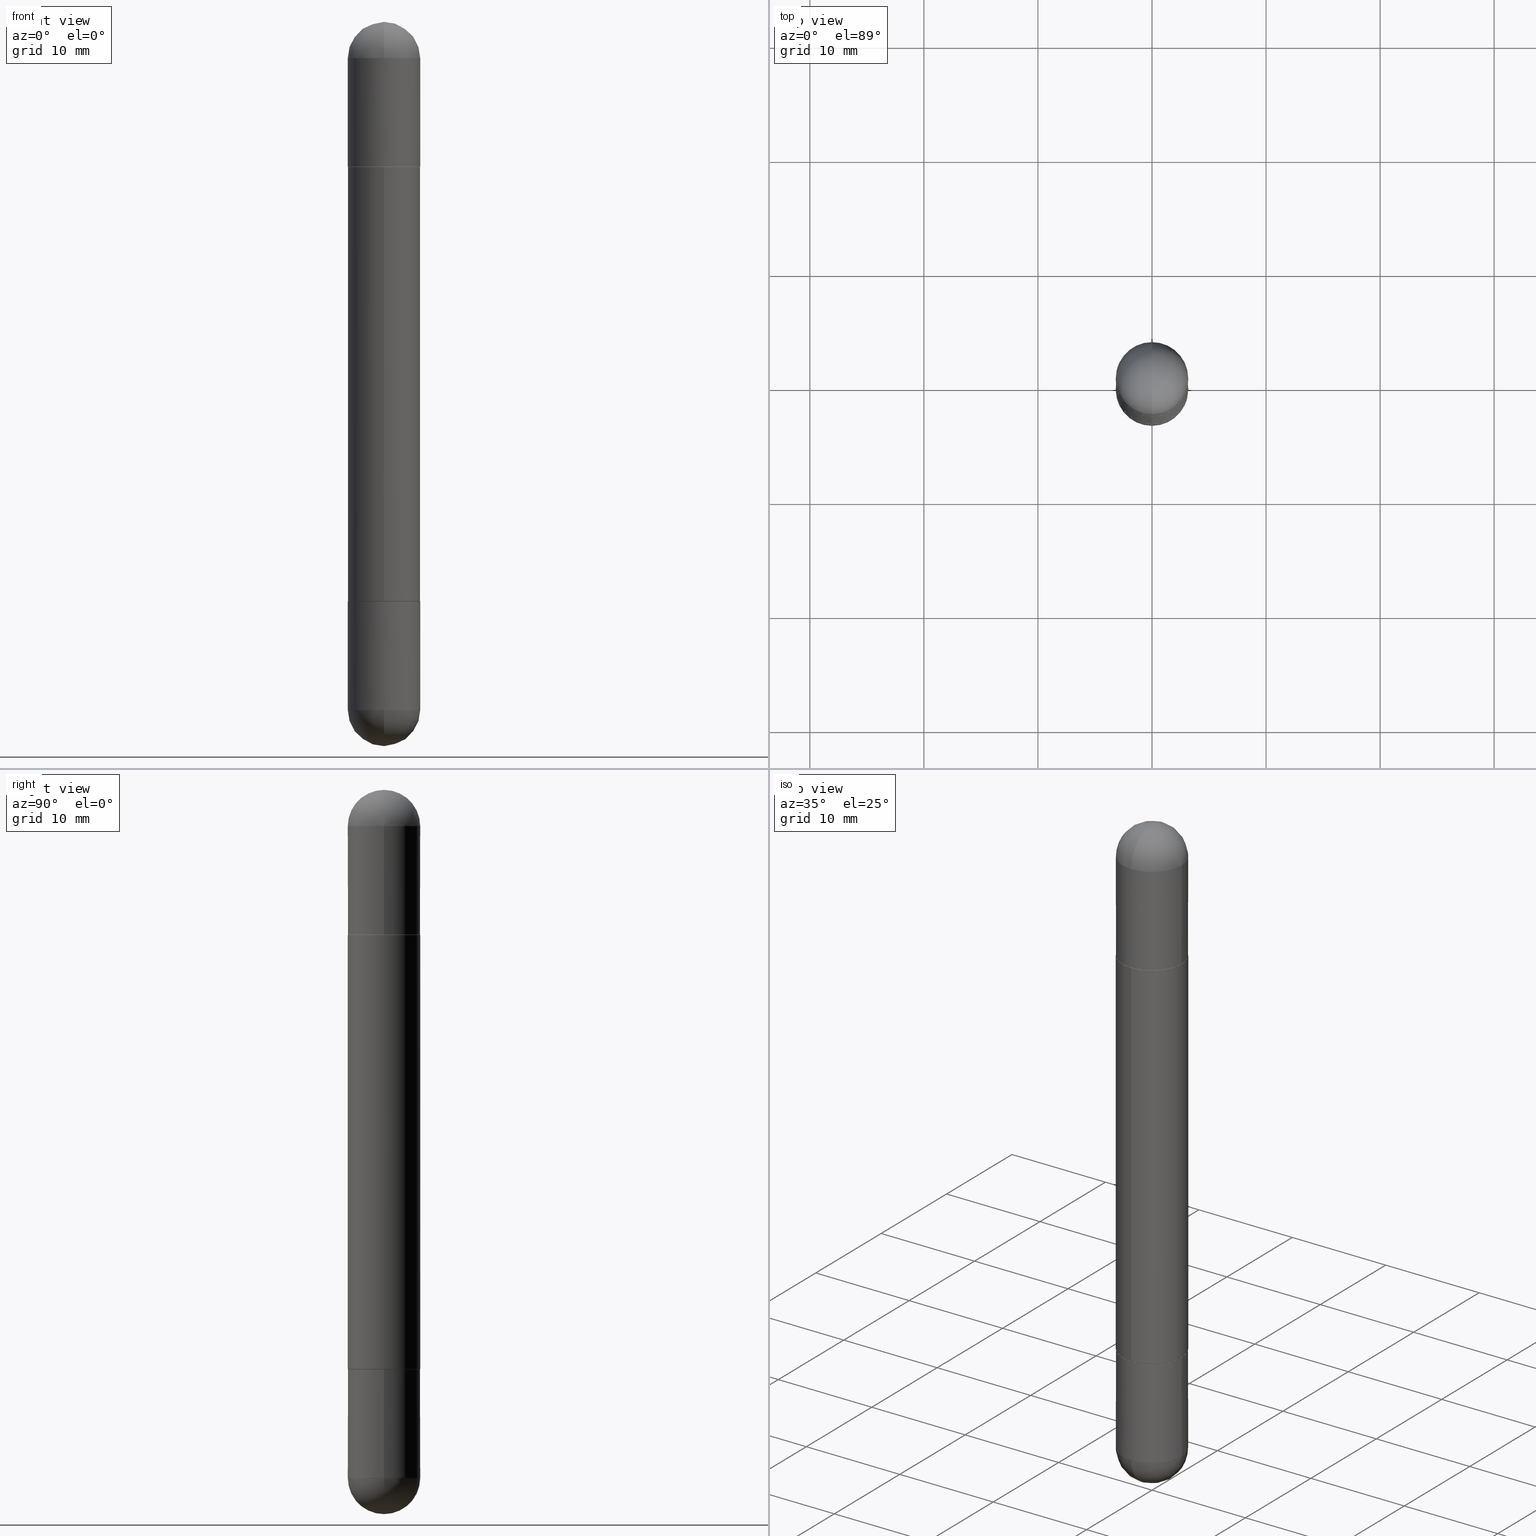
[diagram: canonical four-view strip — front | top / right | iso, engineering-drawing reading convention]
A machine part, canonical four-view strip (front | top / right | iso — engineering-drawing reading convention). The complete STEP part file that produces these views, byte-faithful:
ISO-10303-21;
HEADER;
FILE_DESCRIPTION (( 'STEP AP203' ),
    '1' );
FILE_NAME ('31570.STEP',
    '2024-03-01T12:42:56',
    ( '' ),
    ( '' ),
    'SwSTEP 2.0',
    'SolidWorks 2023',
    '' );
FILE_SCHEMA (( 'CONFIG_CONTROL_DESIGN' ));
ENDSEC;

DATA;
#1 = CARTESIAN_POINT ( 'NONE',  ( -8.881784197000694204E-16, -0.1250000000000086320, -2.374999999999999556 ) ) ;
#2 = CARTESIAN_POINT ( 'NONE',  ( 4.892228969796877709E-29, -6.981113380351891658E-15, -0.5000000000000009992 ) ) ;
#3 = LINE ( 'NONE', #263, #209 ) ;
#4 = DIRECTION ( 'NONE',  ( 2.445468806185136597E-29, -3.491481338843145583E-15, 1.000000000000000000 ) ) ;
#5 = DIRECTION ( 'NONE',  ( 2.445468806185136597E-29, -3.491481338843145583E-15, 1.000000000000000000 ) ) ;
#6 = EDGE_CURVE ( 'NONE', #235, #281, #620, .T. ) ;
#7 = AXIS2_PLACEMENT_3D ( 'NONE', #644, #702, #696 ) ;
#8 = PLANE ( 'NONE',  #88 ) ;
#9 = VERTEX_POINT ( 'NONE', #781 ) ;
#10 = CIRCLE ( 'NONE', #431, 0.1250000000000000000 ) ;
#11 = CIRCLE ( 'NONE', #722, 0.1250000000000002776 ) ;
#12 = CARTESIAN_POINT ( 'NONE',  ( 5.476868636775814291E-29, -8.766450547892521992E-15, -0.1250000000000004441 ) ) ;
#13 = DIRECTION ( 'NONE',  ( 2.446114484898439135E-29, -3.490556690175946223E-15, 1.000000000000000000 ) ) ;
#14 = PLANE ( 'NONE',  #383 ) ;
#15 = DIRECTION ( 'NONE',  ( -0.000000000000000000, -0.000000000000000000, -1.000000000000000000 ) ) ;
#16 = CARTESIAN_POINT ( 'NONE',  ( 0.000000000000000000, 0.000000000000000000, -2.500000000000000444 ) ) ;
#17 = DIRECTION ( 'NONE',  ( -2.446114484898439135E-29, 3.490556690175946618E-15, -1.000000000000000000 ) ) ;
#18 = ADVANCED_FACE ( 'NONE', ( #164 ), #784, .F. ) ;
#19 = CARTESIAN_POINT ( 'NONE',  ( -0.1250000000000000000, 8.575622497214414453E-16, -2.500000000000000444 ) ) ;
#20 = CIRCLE ( 'NONE', #446, 0.1239999999999999991 ) ;
#21 = CC_DESIGN_PERSON_AND_ORGANIZATION_ASSIGNMENT ( #735, #184, ( #697 ) ) ;
#22 = CIRCLE ( 'NONE', #584, 0.1250000000000000000 ) ;
#23 = LENGTH_MEASURE_WITH_UNIT ( LENGTH_MEASURE( 0.02539999999999999897 ), #276 );
#24 = CIRCLE ( 'NONE', #36, 0.1250000000000002776 ) ;
#25 = ORIENTED_EDGE ( 'NONE', *, *, #318, .F. ) ;
#26 = LINE ( 'NONE', #336, #814 ) ;
#27 = ORIENTED_EDGE ( 'NONE', *, *, #127, .F. ) ;
#28 = ORIENTED_EDGE ( 'NONE', *, *, #450, .F. ) ;
#29 = CALENDAR_DATE ( 2024, 1, 3 ) ;
#30 = ADVANCED_FACE ( 'NONE', ( #419 ), #726, .T. ) ;
#31 = VERTEX_POINT ( 'NONE', #503 ) ;
#32 = ADVANCED_FACE ( 'NONE', ( #260 ), #313, .T. ) ;
#33 = AXIS2_PLACEMENT_3D ( 'NONE', #62, #442, #691 ) ;
#34 = COORDINATED_UNIVERSAL_TIME_OFFSET ( 5, 0, .BEHIND. ) ;
#35 = AXIS2_PLACEMENT_3D ( 'NONE', #765, #578, #457 ) ;
#36 = AXIS2_PLACEMENT_3D ( 'NONE', #463, #579, #158 ) ;
#37 = VERTEX_POINT ( 'NONE', #1 ) ;
#38 = ORIENTED_EDGE ( 'NONE', *, *, #60, .F. ) ;
#39 = PERSON_AND_ORGANIZATION_ROLE ( 'creator' ) ;
#40 = ORIENTED_EDGE ( 'NONE', *, *, #655, .T. ) ;
#41 = ORIENTED_EDGE ( 'NONE', *, *, #239, .F. ) ;
#42 = COORDINATED_UNIVERSAL_TIME_OFFSET ( 5, 0, .BEHIND. ) ;
#43 = ORIENTED_EDGE ( 'NONE', *, *, #677, .T. ) ;
#44 = ORIENTED_EDGE ( 'NONE', *, *, #586, .T. ) ;
#45 = DIRECTION ( 'NONE',  ( -2.446114484898438574E-29, 3.490556690175946618E-15, -1.000000000000000000 ) ) ;
#46 = DIRECTION ( 'NONE',  ( 2.445468806185136597E-29, -3.491481338843145583E-15, 1.000000000000000000 ) ) ;
#47 = EDGE_CURVE ( 'NONE', #468, #783, #297, .T. ) ;
#48 = DIRECTION ( 'NONE',  ( 0.000000000000000000, 0.000000000000000000, 1.000000000000000000 ) ) ;
#49 = AXIS2_PLACEMENT_3D ( 'NONE', #207, #447, #685 ) ;
#50 = AXIS2_PLACEMENT_3D ( 'NONE', #82, #648, #705 ) ;
#51 = VERTEX_POINT ( 'NONE', #817 ) ;
#52 = ORIENTED_EDGE ( 'NONE', *, *, #450, .T. ) ;
#53 = LINE ( 'NONE', #307, #649 ) ;
#54 = DIRECTION ( 'NONE',  ( 1.000000000000000000, -6.982962677686265922E-15, -4.883557194083112901E-29 ) ) ;
#55 = EDGE_LOOP ( 'NONE', ( #289, #680, #759, #589, #596 ) ) ;
#56 = ORIENTED_EDGE ( 'NONE', *, *, #6, .F. ) ;
#57 = CARTESIAN_POINT ( 'NONE',  ( 5.807988414689700538E-29, -8.292268179752471696E-15, -0.1250000000000004441 ) ) ;
#58 = CARTESIAN_POINT ( 'NONE',  ( 0.1250000000000000000, -8.728703347107833388E-16, -2.500000000000000444 ) ) ;
#59 = CARTESIAN_POINT ( 'NONE',  ( 4.889782855311978936E-29, -6.977622823661715081E-15, -0.5010000000000010001 ) ) ;
#60 = EDGE_CURVE ( 'NONE', #539, #232, #478, .T. ) ;
#61 = CARTESIAN_POINT ( 'NONE',  ( -8.728703347107364016E-16, -0.1250000000000072720, -0.5010000000000014442 ) ) ;
#62 = CARTESIAN_POINT ( 'NONE',  ( 5.807988414689700538E-29, -8.292268179752471696E-15, -0.1250000000000004441 ) ) ;
#63 = DIRECTION ( 'NONE',  ( -2.446114484898438574E-29, 3.490556690175946618E-15, 1.000000000000000000 ) ) ;
#64 = AXIS2_PLACEMENT_3D ( 'NONE', #216, #4, #392 ) ;
#65 = CIRCLE ( 'NONE', #695, 0.1250000000000001388 ) ;
#66 = CARTESIAN_POINT ( 'NONE',  ( 5.807988414689700538E-29, -8.292268179752471696E-15, -0.1250000000000004441 ) ) ;
#67 = FACE_OUTER_BOUND ( 'NONE', #317, .T. ) ;
#68 = CARTESIAN_POINT ( 'NONE',  ( -8.575622497213856334E-16, -0.1250000000000086320, -0.1250000000000008882 ) ) ;
#69 = DIRECTION ( 'NONE',  ( 1.000000000000000000, -6.982962677686266711E-15, 0.000000000000000000 ) ) ;
#70 = CARTESIAN_POINT ( 'NONE',  ( 8.728703347108403340E-16, 0.1249999999999915623, -0.1250000000000000000 ) ) ;
#71 = CARTESIAN_POINT ( 'NONE',  ( 5.476868636775814291E-29, -8.766450547892521992E-15, -2.375000000000000000 ) ) ;
#72 = DIRECTION ( 'NONE',  ( -2.445468806185136877E-29, 3.491481338843145188E-15, 1.000000000000000000 ) ) ;
#73 = CARTESIAN_POINT ( 'NONE',  ( 5.476868636775814291E-29, -8.766450547892521992E-15, -0.1250000000000004441 ) ) ;
#74 = AXIS2_PLACEMENT_3D ( 'NONE', #256, #750, #698 ) ;
#75 = AXIS2_PLACEMENT_3D ( 'NONE', #214, #454, #811 ) ;
#76 = CARTESIAN_POINT ( 'NONE',  ( 5.476868636775814291E-29, -8.766450547892521992E-15, -2.375000000000000000 ) ) ;
#77 = DIRECTION ( 'NONE',  ( 1.000000000000000000, -6.982962677686270655E-15, 0.000000000000000000 ) ) ;
#78 = DIRECTION ( 'NONE',  ( -6.982962677686265922E-15, -1.000000000000000000, -3.304654831045479808E-15 ) ) ;
#79 = ORIENTED_EDGE ( 'NONE', *, *, #693, .T. ) ;
#80 = DIRECTION ( 'NONE',  ( -2.445468806185136877E-29, 3.491481338843145188E-15, -1.000000000000000000 ) ) ;
#81 = ADVANCED_FACE ( 'NONE', ( #555 ), #810, .T. ) ;
#82 = CARTESIAN_POINT ( 'NONE',  ( 0.000000000000000000, 0.000000000000000000, -2.500000000000000444 ) ) ;
#83 = DIRECTION ( 'NONE',  ( 2.438088387897960049E-29, -3.491481338843145188E-15, 1.000000000000000000 ) ) ;
#84 = EDGE_CURVE ( 'NONE', #413, #740, #797, .T. ) ;
#85 = ORIENTED_EDGE ( 'NONE', *, *, #84, .T. ) ;
#86 = FACE_OUTER_BOUND ( 'NONE', #792, .T. ) ;
#87 = DIMENSIONAL_EXPONENTS ( 1.000000000000000000, 0.000000000000000000, 0.000000000000000000, 0.000000000000000000, 0.000000000000000000, 0.000000000000000000, 0.000000000000000000 ) ;
#88 = AXIS2_PLACEMENT_3D ( 'NONE', #625, #83, #334 ) ;
#89 = CONICAL_SURFACE ( 'NONE', #760, 0.1239999999999999991, 0.7853981633975507526 ) ;
#90 = CYLINDRICAL_SURFACE ( 'NONE', #50, 0.1250000000000001388 ) ;
#91 = APPROVAL_PERSON_ORGANIZATION ( #532, #403, #785 ) ;
#92 = ORIENTED_EDGE ( 'NONE', *, *, #273, .T. ) ;
#93 = CC_DESIGN_DATE_AND_TIME_ASSIGNMENT ( #538, #346, ( #531 ) ) ;
#94 = FACE_OUTER_BOUND ( 'NONE', #429, .T. ) ;
#95 = ORIENTED_EDGE ( 'NONE', *, *, #6, .T. ) ;
#96 = EDGE_CURVE ( 'NONE', #615, #413, #254, .T. ) ;
#97 = EDGE_LOOP ( 'NONE', ( #98, #398, #250, #226 ) ) ;
#98 = ORIENTED_EDGE ( 'NONE', *, *, #677, .F. ) ;
#99 = PERSON_AND_ORGANIZATION_ROLE ( 'design_supplier' ) ;
#100 = ORIENTED_EDGE ( 'NONE', *, *, #474, .T. ) ;
#101 = ORIENTED_EDGE ( 'NONE', *, *, #337, .T. ) ;
#102 = PERSON_AND_ORGANIZATION ( #421, #460 ) ;
#103 = CIRCLE ( 'NONE', #136, 0.1250000000000001388 ) ;
#104 = LOCAL_TIME ( 7, 42, 56.00000000000000000, #666 ) ;
#105 = EDGE_LOOP ( 'NONE', ( #175, #188, #462, #373 ) ) ;
#106 = ORIENTED_EDGE ( 'NONE', *, *, #815, .F. ) ;
#107 = DATE_AND_TIME ( #588, #151 ) ;
#108 = CARTESIAN_POINT ( 'NONE',  ( -8.728703347107363030E-16, -0.1250000000000072442, -1.998999999999999000 ) ) ;
#109 = ADVANCED_FACE ( 'NONE', ( #497 ), #246, .T. ) ;
#110 = ORIENTED_EDGE ( 'NONE', *, *, #293, .F. ) ;
#111 = ORIENTED_EDGE ( 'NONE', *, *, #703, .F. ) ;
#112 = DIRECTION ( 'NONE',  ( -2.446114484898439135E-29, 3.490556690175946618E-15, -1.000000000000000000 ) ) ;
#113 = CARTESIAN_POINT ( 'NONE',  ( 4.889782855311978936E-29, -6.977622823661715081E-15, -0.5010000000000010001 ) ) ;
#114 = ORIENTED_EDGE ( 'NONE', *, *, #127, .T. ) ;
#115 = DIRECTION ( 'NONE',  ( 4.851104656541460468E-15, 0.7071067811866224018, -0.7071067811864726327 ) ) ;
#116 = DIRECTION ( 'NONE',  ( 1.000000000000000000, -6.982962677686270655E-15, 0.000000000000000000 ) ) ;
#117 = CALENDAR_DATE ( 2024, 1, 3 ) ;
#118 = CLOSED_SHELL ( 'NONE', ( #30, #161, #388, #341, #378 ) ) ;
#119 = CIRCLE ( 'NONE', #290, 0.1239999999999999991 ) ;
#120 = APPROVAL_PERSON_ORGANIZATION ( #420, #179, #671 ) ;
#121 = EDGE_LOOP ( 'NONE', ( #681, #476, #610, #535, #778 ) ) ;
#122 = CARTESIAN_POINT ( 'NONE',  ( 5.476868636775814291E-29, -8.766450547892521992E-15, -0.1250000000000004441 ) ) ;
#123 = DIRECTION ( 'NONE',  ( -2.445468806185136877E-29, 3.491481338843145188E-15, -1.000000000000000000 ) ) ;
#124 = EDGE_CURVE ( 'NONE', #385, #198, #135, .T. ) ;
#125 = SPHERICAL_SURFACE ( 'NONE', #605, 0.1250000000000001943 ) ;
#126 = ORIENTED_EDGE ( 'NONE', *, *, #302, .T. ) ;
#127 = EDGE_CURVE ( 'NONE', #793, #362, #208, .T. ) ;
#128 = PRODUCT_DEFINITION_SHAPE ( 'NONE', 'NONE',  #531 ) ;
#129 = DIRECTION ( 'NONE',  ( 2.445468806185136597E-29, -3.491481338843145583E-15, 1.000000000000000000 ) ) ;
#130 = CARTESIAN_POINT ( 'NONE',  ( 4.892228969796877709E-29, -6.981113380351891658E-15, -0.5000000000000009992 ) ) ;
#131 = DIRECTION ( 'NONE',  ( -2.446114484898439135E-29, 3.490556690175946223E-15, -1.000000000000000000 ) ) ;
#132 = ORIENTED_EDGE ( 'NONE', *, *, #47, .T. ) ;
#133 = CARTESIAN_POINT ( 'NONE',  ( 4.890937612370273194E-29, -6.982962677686291165E-15, -0.5000000000000006661 ) ) ;
#134 = CARTESIAN_POINT ( 'NONE',  ( 0.1250000000000000000, -8.728703347107833388E-16, -2.500000000000000444 ) ) ;
#135 = CIRCLE ( 'NONE', #796, 0.1250000000000000000 ) ;
#136 = AXIS2_PLACEMENT_3D ( 'NONE', #401, #15, #327 ) ;
#137 = CARTESIAN_POINT ( 'NONE',  ( -0.1250000000000000000, 8.881784197001252323E-16, -6.148668862818632227E-30 ) ) ;
#138 = AXIS2_PLACEMENT_3D ( 'NONE', #165, #342, #635 ) ;
#139 = CARTESIAN_POINT ( 'NONE',  ( -8.658873720330480207E-16, -0.1240000000000069796, -0.5000000000000013323 ) ) ;
#140 = CARTESIAN_POINT ( 'NONE',  ( 5.807988414689700538E-29, -8.292268179752471696E-15, -2.375000000000000000 ) ) ;
#141 = CARTESIAN_POINT ( 'NONE',  ( 8.728703347108403340E-16, 0.1249999999999915623, -2.375000000000000888 ) ) ;
#142 = EDGE_CURVE ( 'NONE', #672, #235, #277, .T. ) ;
#143 = DIRECTION ( 'NONE',  ( -6.982962677686265922E-15, -1.000000000000000000, -3.278217592397108762E-15 ) ) ;
#144 = CARTESIAN_POINT ( 'NONE',  ( 0.1250000000000000000, -7.855833012397075293E-15, -0.5000000000000006661 ) ) ;
#145 = DIRECTION ( 'NONE',  ( -1.000000000000000000, 6.982962677686265922E-15, -4.876176775795935793E-29 ) ) ;
#146 = CARTESIAN_POINT ( 'NONE',  ( 4.892228969796878269E-29, -6.981113380351892447E-15, -0.5000000000000006661 ) ) ;
#147 = CIRCLE ( 'NONE', #64, 0.1250000000000000000 ) ;
#148 = CYLINDRICAL_SURFACE ( 'NONE', #395, 0.1250000000000000000 ) ;
#149 = EDGE_LOOP ( 'NONE', ( #790, #585, #79, #598 ) ) ;
#150 = AXIS2_PLACEMENT_3D ( 'NONE', #16, #275, #522 ) ;
#151 = LOCAL_TIME ( 7, 42, 56.00000000000000000, #177 ) ;
#152 = CARTESIAN_POINT ( 'NONE',  ( 0.1250000000000000000, -8.510485763430165164E-15, -0.1250000000000004441 ) ) ;
#153 = FACE_OUTER_BOUND ( 'NONE', #357, .T. ) ;
#154 = EDGE_CURVE ( 'NONE', #51, #281, #647, .T. ) ;
#155 = ORIENTED_EDGE ( 'NONE', *, *, #586, .F. ) ;
#156 = ORIENTED_EDGE ( 'NONE', *, *, #163, .F. ) ;
#157 = CARTESIAN_POINT ( 'NONE',  ( 4.892228969796877709E-29, -6.981113380351891658E-15, -1.999999999999999778 ) ) ;
#158 = DIRECTION ( 'NONE',  ( -6.982962677686265922E-15, -1.000000000000000000, 4.370956789862811683E-15 ) ) ;
#159 = FACE_OUTER_BOUND ( 'NONE', #779, .T. ) ;
#160 = DIRECTION ( 'NONE',  ( -2.446114484898439135E-29, 3.490556690175946223E-15, 1.000000000000000000 ) ) ;
#161 = ADVANCED_FACE ( 'NONE', ( #359 ), #308, .T. ) ;
#162 = CIRCLE ( 'NONE', #326, 0.1250000000000000000 ) ;
#163 = EDGE_CURVE ( 'NONE', #305, #9, #405, .T. ) ;
#164 = FACE_OUTER_BOUND ( 'NONE', #484, .T. ) ;
#165 = CARTESIAN_POINT ( 'NONE',  ( 0.000000000000000000, 0.000000000000000000, -2.500000000000000444 ) ) ;
#166 = MANIFOLD_SOLID_BREP ( 'Mirror4[3]', #242 ) ;
#167 = EDGE_CURVE ( 'NONE', #344, #527, #604, .T. ) ;
#168 = EDGE_LOOP ( 'NONE', ( #27, #52, #714, #741 ) ) ;
#169 = MANIFOLD_SOLID_BREP ( 'Mirror4[1]', #583 ) ;
#170 = CARTESIAN_POINT ( 'NONE',  ( 0.000000000000000000, 0.000000000000000000, -2.500000000000000444 ) ) ;
#171 = MANIFOLD_SOLID_BREP ( 'Combine1', #265 ) ;
#172 = VERTEX_POINT ( 'NONE', #200 ) ;
#173 = APPLICATION_PROTOCOL_DEFINITION ( 'international standard', 'config_control_design', 1994, #713 ) ;
#174 = ORIENTED_EDGE ( 'NONE', *, *, #60, .T. ) ;
#175 = ORIENTED_EDGE ( 'NONE', *, *, #273, .F. ) ;
#176 = CARTESIAN_POINT ( 'NONE',  ( 8.810729923425729363E-16, 0.1239999999999930186, -2.000000000000000444 ) ) ;
#177 = COORDINATED_UNIVERSAL_TIME_OFFSET ( 5, 0, .BEHIND. ) ;
#178 = AXIS2_PLACEMENT_3D ( 'NONE', #558, #572, #262 ) ;
#179 = APPROVAL ( #247, 'UNSPECIFIED' ) ;
#180 = VERTEX_POINT ( 'NONE', #617 ) ;
#181 = VERTEX_POINT ( 'NONE', #501 ) ;
#182 = DIRECTION ( 'NONE',  ( 1.000000000000000000, -6.982962677686270655E-15, 0.000000000000000000 ) ) ;
#183 = DIRECTION ( 'NONE',  ( 1.000000000000000000, -6.982962677686266711E-15, 4.876176775795935793E-29 ) ) ;
#184 = PERSON_AND_ORGANIZATION_ROLE ( 'classification_officer' ) ;
#185 = ORIENTED_EDGE ( 'NONE', *, *, #699, .F. ) ;
#186 = DIRECTION ( 'NONE',  ( 1.000000000000000000, -6.982962677686266711E-15, 0.000000000000000000 ) ) ;
#187 = ORIENTED_EDGE ( 'NONE', *, *, #609, .T. ) ;
#188 = ORIENTED_EDGE ( 'NONE', *, *, #767, .T. ) ;
#189 = EDGE_CURVE ( 'NONE', #600, #615, #416, .T. ) ;
#190 = SPHERICAL_SURFACE ( 'NONE', #534, 0.1250000000000001943 ) ;
#191 = DIRECTION ( 'NONE',  ( 1.000000000000000000, -6.982962677686270655E-15, 0.000000000000000000 ) ) ;
#192 = FACE_OUTER_BOUND ( 'NONE', #215, .T. ) ;
#193 = CIRCLE ( 'NONE', #732, 0.1250000000000001943 ) ;
#194 = DIRECTION ( 'NONE',  ( -6.982962677686265922E-15, -1.000000000000000000, 3.490556690175946618E-15 ) ) ;
#195 = VECTOR ( 'NONE', #115, 39.37007874015748143 ) ;
#196 = AXIS2_PLACEMENT_3D ( 'NONE', #641, #766, #656 ) ;
#197 = ADVANCED_FACE ( 'NONE', ( #67 ), #380, .F. ) ;
#198 = VERTEX_POINT ( 'NONE', #213 ) ;
#199 = CARTESIAN_POINT ( 'NONE',  ( 4.892228969796877709E-29, -6.981113380351891658E-15, -0.5000000000000009992 ) ) ;
#200 = CARTESIAN_POINT ( 'NONE',  ( 5.787897026856327965E-29, -9.195231672753244292E-15, -2.500000000000000444 ) ) ;
#201 = CARTESIAN_POINT ( 'NONE',  ( -0.1250000000000000000, -6.749437009019255804E-15, -2.000000000000000000 ) ) ;
#202 = ORIENTED_EDGE ( 'NONE', *, *, #154, .F. ) ;
#203 = CARTESIAN_POINT ( 'NONE',  ( 0.1250000000000000000, -8.510485763430165164E-15, -2.375000000000000000 ) ) ;
#204 = DIRECTION ( 'NONE',  ( -6.982962677686265922E-15, -1.000000000000000000, -3.278217592397108762E-15 ) ) ;
#205 = LINE ( 'NONE', #134, #507 ) ;
#206 = CARTESIAN_POINT ( 'NONE',  ( 8.728703347108321496E-16, 0.1249999999999930195, -2.000000000000000444 ) ) ;
#207 = CARTESIAN_POINT ( 'NONE',  ( 5.807988414689700538E-29, -8.292268179752471696E-15, -2.375000000000000000 ) ) ;
#208 = CIRCLE ( 'NONE', #394, 0.1239999999999999991 ) ;
#209 = VECTOR ( 'NONE', #505, 39.37007874015748143 ) ;
#210 = EDGE_CURVE ( 'NONE', #422, #181, #147, .T. ) ;
#211 = CARTESIAN_POINT ( 'NONE',  ( 0.000000000000000000, 0.000000000000000000, -2.500000000000000444 ) ) ;
#212 = CIRCLE ( 'NONE', #761, 0.1239999999999999991 ) ;
#213 = CARTESIAN_POINT ( 'NONE',  ( -0.1250000000000000000, -6.749437009019256592E-15, -2.375000000000000000 ) ) ;
#214 = CARTESIAN_POINT ( 'NONE',  ( 5.476868636775814291E-29, -8.766450547892521992E-15, -0.1250000000000004441 ) ) ;
#215 = EDGE_LOOP ( 'NONE', ( #41, #43, #733, #665 ) ) ;
#216 = CARTESIAN_POINT ( 'NONE',  ( 5.807988414689700538E-29, -8.292268179752471696E-15, -0.1250000000000004441 ) ) ;
#217 = DIRECTION ( 'NONE',  ( 1.000000000000000000, -6.982962677686270655E-15, 0.000000000000000000 ) ) ;
#218 = CARTESIAN_POINT ( 'NONE',  ( -0.1250000000000000000, -6.780053178997941168E-15, -0.1250000000000004441 ) ) ;
#219 = ORIENTED_EDGE ( 'NONE', *, *, #271, .F. ) ;
#220 = DIRECTION ( 'NONE',  ( -2.446114484898439135E-29, 3.490556690175946223E-15, -1.000000000000000000 ) ) ;
#221 = ADVANCED_FACE ( 'NONE', ( #444 ), #757, .T. ) ;
#222 = CARTESIAN_POINT ( 'NONE',  ( -0.1250000000000000000, -6.780053178997939591E-15, -0.5000000000000006661 ) ) ;
#223 = VECTOR ( 'NONE', #399, 39.37007874015748143 ) ;
#224 = PRODUCT_DEFINITION_FORMATION_WITH_SPECIFIED_SOURCE ( 'ANY', '', #494, .NOT_KNOWN. ) ;
#225 = CARTESIAN_POINT ( 'NONE',  ( 8.575622497214919324E-16, 0.1249999999999932693, -0.5010000000000006670 ) ) ;
#226 = ORIENTED_EDGE ( 'NONE', *, *, #510, .T. ) ;
#227 = DIRECTION ( 'NONE',  ( -2.446114484898438574E-29, 3.490556690175946618E-15, -1.000000000000000000 ) ) ;
#228 = CIRCLE ( 'NONE', #533, 0.1239999999999999991 ) ;
#229 = ORIENTED_EDGE ( 'NONE', *, *, #678, .F. ) ;
#230 = AXIS2_PLACEMENT_3D ( 'NONE', #562, #631, #564 ) ;
#231 = CONICAL_SURFACE ( 'NONE', #396, 0.1239999999999999991, 0.7853981633975507526 ) ;
#232 = VERTEX_POINT ( 'NONE', #707 ) ;
#233 = DIRECTION ( 'NONE',  ( 0.000000000000000000, 0.000000000000000000, 1.000000000000000000 ) ) ;
#234 = SHAPE_DEFINITION_REPRESENTATION ( #128, #384 ) ;
#235 = VERTEX_POINT ( 'NONE', #152 ) ;
#236 = ORIENTED_EDGE ( 'NONE', *, *, #376, .T. ) ;
#237 = CALENDAR_DATE ( 2024, 1, 3 ) ;
#238 = ORIENTED_EDGE ( 'NONE', *, *, #210, .F. ) ;
#239 = EDGE_CURVE ( 'NONE', #180, #600, #430, .T. ) ;
#240 = APPROVAL_DATE_TIME ( #791, #179 ) ;
#241 = ORIENTED_EDGE ( 'NONE', *, *, #655, .F. ) ;
#242 = CLOSED_SHELL ( 'NONE', ( #81, #472, #544, #390, #352 ) ) ;
#243 = APPROVAL_ROLE ( '' ) ;
#244 = AXIS2_PLACEMENT_3D ( 'NONE', #12, #272, #268 ) ;
#245 = ORIENTED_EDGE ( 'NONE', *, *, #652, .F. ) ;
#246 = CYLINDRICAL_SURFACE ( 'NONE', #545, 0.1250000000000000000 ) ;
#247 = APPROVAL_STATUS ( 'not_yet_approved' ) ;
#248 = LINE ( 'NONE', #423, #195 ) ;
#249 = EDGE_CURVE ( 'NONE', #362, #468, #565, .T. ) ;
#250 = ORIENTED_EDGE ( 'NONE', *, *, #189, .T. ) ;
#251 = DIRECTION ( 'NONE',  ( -1.000000000000000000, 0.000000000000000000, 0.000000000000000000 ) ) ;
#252 = DIRECTION ( 'NONE',  ( -2.445468806185136597E-29, 3.491481338843145583E-15, -1.000000000000000000 ) ) ;
#253 = DIRECTION ( 'NONE',  ( -1.000000000000000000, 6.982962677686265922E-15, 4.883557194083112340E-29 ) ) ;
#254 = LINE ( 'NONE', #58, #338 ) ;
#255 = AXIS2_PLACEMENT_3D ( 'NONE', #594, #233, #473 ) ;
#256 = CARTESIAN_POINT ( 'NONE',  ( 5.476868636775814291E-29, -8.766450547892521992E-15, -0.1250000000000004441 ) ) ;
#257 = CIRCLE ( 'NONE', #679, 0.1250000000000000000 ) ;
#258 = CARTESIAN_POINT ( 'NONE',  ( 0.000000000000000000, 0.000000000000000000, 0.000000000000000000 ) ) ;
#259 = PLANE ( 'NONE',  #773 ) ;
#260 = FACE_OUTER_BOUND ( 'NONE', #292, .T. ) ;
#261 = EDGE_CURVE ( 'NONE', #783, #468, #570, .T. ) ;
#262 = DIRECTION ( 'NONE',  ( 1.000000000000000000, -6.982962677686270655E-15, 0.000000000000000000 ) ) ;
#263 = CARTESIAN_POINT ( 'NONE',  ( 8.507017517237187427E-16, 0.1239999999999930186, -0.5000000000000005551 ) ) ;
#264 = CARTESIAN_POINT ( 'NONE',  ( 4.889782855311978936E-29, -6.977622823661715081E-15, -0.5010000000000010001 ) ) ;
#265 = CLOSED_SHELL ( 'NONE', ( #788, #805, #595, #541, #597, #32, #556, #552 ) ) ;
#266 = CIRCLE ( 'NONE', #178, 0.1250000000000000000 ) ;
#267 = CIRCLE ( 'NONE', #351, 0.1250000000000001943 ) ;
#268 = DIRECTION ( 'NONE',  ( 6.982962677686265922E-15, 1.000000000000000000, 3.551402391763536859E-15 ) ) ;
#269 = CYLINDRICAL_SURFACE ( 'NONE', #196, 0.1250000000000000000 ) ;
#270 = CARTESIAN_POINT ( 'NONE',  ( -8.658873720330480207E-16, -0.1240000000000069796, -1.999999999999999112 ) ) ;
#271 = EDGE_CURVE ( 'NONE', #527, #344, #228, .T. ) ;
#272 = DIRECTION ( 'NONE',  ( 1.000000000000000000, -6.982962677686265922E-15, -4.883557194083112901E-29 ) ) ;
#273 = EDGE_CURVE ( 'NONE', #172, #385, #193, .T. ) ;
#274 = LINE ( 'NONE', #19, #470 ) ;
#275 = DIRECTION ( 'NONE',  ( -2.446114484898439135E-29, 3.490556690175946223E-15, -1.000000000000000000 ) ) ;
#276 =( LENGTH_UNIT ( ) NAMED_UNIT ( * ) SI_UNIT ( $, .METRE. ) );
#277 = CIRCLE ( 'NONE', #348, 0.1250000000000000000 ) ;
#278 = VECTOR ( 'NONE', #112, 39.37007874015748143 ) ;
#279 = ORIENTED_EDGE ( 'NONE', *, *, #815, .T. ) ;
#280 = DIRECTION ( 'NONE',  ( -7.105427357601000281E-15, -1.000000000000000000, 0.000000000000000000 ) ) ;
#281 = VERTEX_POINT ( 'NONE', #70 ) ;
#282 = DIRECTION ( 'NONE',  ( -4.937700262165053702E-15, -0.7071067811866175168, 0.7071067811864775177 ) ) ;
#283 = PRODUCT_RELATED_PRODUCT_CATEGORY ( 'detail', '', ( #494 ) ) ;
#284 = ORIENTED_EDGE ( 'NONE', *, *, #481, .T. ) ;
#285 = ORIENTED_EDGE ( 'NONE', *, *, #802, .T. ) ;
#286 = DATE_TIME_ROLE ( 'classification_date' ) ;
#287 = ORIENTED_EDGE ( 'NONE', *, *, #189, .F. ) ;
#288 = CLOSED_SHELL ( 'NONE', ( #109, #651, #455, #197, #716 ) ) ;
#289 = ORIENTED_EDGE ( 'NONE', *, *, #124, .T. ) ;
#290 = AXIS2_PLACEMENT_3D ( 'NONE', #576, #518, #78 ) ;
#291 = LOCAL_TIME ( 7, 42, 56.00000000000000000, #34 ) ;
#292 = EDGE_LOOP ( 'NONE', ( #185, #296, #284, #279 ) ) ;
#293 = EDGE_CURVE ( 'NONE', #528, #440, #20, .T. ) ;
#294 = EDGE_LOOP ( 'NONE', ( #789, #219 ) ) ;
#295 = ORIENTED_EDGE ( 'NONE', *, *, #693, .F. ) ;
#296 = ORIENTED_EDGE ( 'NONE', *, *, #47, .F. ) ;
#297 = CIRCLE ( 'NONE', #632, 0.1250000000000002776 ) ;
#298 = CIRCLE ( 'NONE', #230, 0.1250000000000000000 ) ;
#299 = CARTESIAN_POINT ( 'NONE',  ( 5.476868636775814291E-29, -8.766450547892521992E-15, -0.1250000000000004441 ) ) ;
#300 = CARTESIAN_POINT ( 'NONE',  ( 0.000000000000000000, 0.000000000000000000, 0.000000000000000000 ) ) ;
#301 = CIRCLE ( 'NONE', #550, 0.1250000000000000000 ) ;
#302 = EDGE_CURVE ( 'NONE', #527, #343, #725, .T. ) ;
#303 = CARTESIAN_POINT ( 'NONE',  ( 8.541320007226054361E-16, 0.1239999999999930186, -0.5000000000000005551 ) ) ;
#304 = ORIENTED_EDGE ( 'NONE', *, *, #674, .T. ) ;
#305 = VERTEX_POINT ( 'NONE', #144 ) ;
#306 = EDGE_CURVE ( 'NONE', #198, #667, #391, .T. ) ;
#307 = CARTESIAN_POINT ( 'NONE',  ( 0.1250000000000000000, -8.728703347107833388E-16, 6.095220969744919741E-30 ) ) ;
#308 = SPHERICAL_SURFACE ( 'NONE', #772, 0.1250000000000001943 ) ;
#309 = UNCERTAINTY_MEASURE_WITH_UNIT (LENGTH_MEASURE( 1.000000000000000082E-05 ), #526, 'distance_accuracy_value', 'NONE');
#310 = DIRECTION ( 'NONE',  ( -2.446114484898439135E-29, 3.490556690175946223E-15, -1.000000000000000000 ) ) ;
#311 = DIRECTION ( 'NONE',  ( -4.937700262165053702E-15, -0.7071067811866175168, -0.7071067811864775177 ) ) ;
#312 = CARTESIAN_POINT ( 'NONE',  ( 8.846257060213744265E-16, 0.1239999999999930186, -2.000000000000000444 ) ) ;
#313 = CYLINDRICAL_SURFACE ( 'NONE', #745, 0.1250000000000001388 ) ;
#314 = AXIS2_PLACEMENT_3D ( 'NONE', #560, #803, #557 ) ;
#315 = FACE_OUTER_BOUND ( 'NONE', #294, .T. ) ;
#316 = AXIS2_PLACEMENT_3D ( 'NONE', #199, #554, #435 ) ;
#317 = EDGE_LOOP ( 'NONE', ( #657, #619 ) ) ;
#318 = EDGE_CURVE ( 'NONE', #537, #408, #103, .T. ) ;
#319 = DIRECTION ( 'NONE',  ( -2.445468806185136597E-29, 3.491481338843145583E-15, 1.000000000000000000 ) ) ;
#320 = CARTESIAN_POINT ( 'NONE',  ( -8.658873720330480207E-16, -0.1240000000000069796, -0.5000000000000013323 ) ) ;
#321 = CARTESIAN_POINT ( 'NONE',  ( -8.658873720330480207E-16, -0.1240000000000069796, -0.5000000000000013323 ) ) ;
#322 = CARTESIAN_POINT ( 'NONE',  ( 4.892228969796877709E-29, -6.981113380351891658E-15, -0.5000000000000009992 ) ) ;
#323 = DIRECTION ( 'NONE',  ( -1.000000000000000000, 6.982962677686265922E-15, -4.883557194083112901E-29 ) ) ;
#324 = FACE_OUTER_BOUND ( 'NONE', #593, .T. ) ;
#325 = AXIS2_PLACEMENT_3D ( 'NONE', #206, #569, #145 ) ;
#326 = AXIS2_PLACEMENT_3D ( 'NONE', #140, #382, #502 ) ;
#327 = DIRECTION ( 'NONE',  ( -1.000000000000000000, 0.000000000000000000, 0.000000000000000000 ) ) ;
#328 = DIRECTION ( 'NONE',  ( 1.000000000000000000, -6.982962677686265922E-15, 4.883557194083112340E-29 ) ) ;
#329 = DIRECTION ( 'NONE',  ( -6.982962677686265922E-15, -1.000000000000000000, -3.490556690175946618E-15 ) ) ;
#330 = DIRECTION ( 'NONE',  ( 5.024295867788576727E-15, 0.7071067811866224018, 0.7071067811864726327 ) ) ;
#331 = FACE_OUTER_BOUND ( 'NONE', #467, .T. ) ;
#332 = DIRECTION ( 'NONE',  ( -6.982962677686265922E-15, -1.000000000000000000, 4.370956789862811683E-15 ) ) ;
#333 = APPLICATION_CONTEXT ( 'configuration controlled 3d designs of mechanical parts and assemblies' ) ;
#334 = DIRECTION ( 'NONE',  ( -1.000000000000000000, 6.982962677686265922E-15, 4.876176775795935793E-29 ) ) ;
#335 = ORIENTED_EDGE ( 'NONE', *, *, #636, .F. ) ;
#336 = CARTESIAN_POINT ( 'NONE',  ( -8.658873720330480207E-16, -0.1240000000000069796, -1.999999999999999112 ) ) ;
#337 = EDGE_CURVE ( 'NONE', #181, #740, #274, .T. ) ;
#338 = VECTOR ( 'NONE', #123, 39.37007874015748143 ) ;
#339 = AXIS2_PLACEMENT_3D ( 'NONE', #133, #623, #675 ) ;
#340 = CC_DESIGN_APPROVAL ( #403, ( #697 ) ) ;
#341 = ADVANCED_FACE ( 'NONE', ( #397 ), #8, .F. ) ;
#342 = DIRECTION ( 'NONE',  ( -2.446114484898439135E-29, 3.490556690175946223E-15, -1.000000000000000000 ) ) ;
#343 = VERTEX_POINT ( 'NONE', #580 ) ;
#344 = VERTEX_POINT ( 'NONE', #270 ) ;
#345 = ORIENTED_EDGE ( 'NONE', *, *, #517, .F. ) ;
#346 = DATE_TIME_ROLE ( 'creation_date' ) ;
#347 = CC_DESIGN_DATE_AND_TIME_ASSIGNMENT ( #107, #286, ( #697 ) ) ;
#348 = AXIS2_PLACEMENT_3D ( 'NONE', #375, #427, #116 ) ;
#349 = ORIENTED_EDGE ( 'NONE', *, *, #517, .T. ) ;
#350 = VECTOR ( 'NONE', #330, 39.37007874015748143 ) ;
#351 = AXIS2_PLACEMENT_3D ( 'NONE', #458, #710, #280 ) ;
#352 = ADVANCED_FACE ( 'NONE', ( #513 ), #148, .T. ) ;
#353 = EDGE_LOOP ( 'NONE', ( #156, #654 ) ) ;
#354 = ORIENTED_EDGE ( 'NONE', *, *, #163, .T. ) ;
#355 = DATE_AND_TIME ( #29, #471 ) ;
#356 = ORIENTED_EDGE ( 'NONE', *, *, #510, .F. ) ;
#357 = EDGE_LOOP ( 'NONE', ( #643, #38, #801, #345 ) ) ;
#358 = CARTESIAN_POINT ( 'NONE',  ( -8.728703347107444874E-16, -0.1250000000000044964, -1.250000000000000222 ) ) ;
#359 = FACE_OUTER_BOUND ( 'NONE', #409, .T. ) ;
#360 = CALENDAR_DATE ( 2024, 1, 3 ) ;
#361 = EDGE_CURVE ( 'NONE', #440, #528, #119, .T. ) ;
#362 = VERTEX_POINT ( 'NONE', #321 ) ;
#363 = AXIS2_PLACEMENT_3D ( 'NONE', #613, #687, #186 ) ;
#364 = AXIS2_PLACEMENT_3D ( 'NONE', #567, #5, #763 ) ;
#365 = CARTESIAN_POINT ( 'NONE',  ( -8.728703347107364016E-16, -0.1250000000000072720, -0.5010000000000014442 ) ) ;
#366 = CARTESIAN_POINT ( 'NONE',  ( 5.476868636775814291E-29, -8.766450547892521992E-15, -0.1250000000000004441 ) ) ;
#367 = APPROVAL_PERSON_ORGANIZATION ( #676, #464, #243 ) ;
#368 = EDGE_LOOP ( 'NONE', ( #479, #475, #56, #639, #354 ) ) ;
#369 = ORIENTED_EDGE ( 'NONE', *, *, #142, .T. ) ;
#370 = DIRECTION ( 'NONE',  ( 2.445468806185136597E-29, -3.491481338843145583E-15, 1.000000000000000000 ) ) ;
#371 = DIRECTION ( 'NONE',  ( -6.982962677686265922E-15, -1.000000000000000000, 4.406206441393973340E-15 ) ) ;
#372 = DIRECTION ( 'NONE',  ( 6.982962677686265922E-15, 1.000000000000000000, -4.370956789862814839E-15 ) ) ;
#373 = ORIENTED_EDGE ( 'NONE', *, *, #124, .F. ) ;
#374 = DIRECTION ( 'NONE',  ( 1.000000000000000000, -6.982962677686270655E-15, 0.000000000000000000 ) ) ;
#375 = CARTESIAN_POINT ( 'NONE',  ( 5.807988414689700538E-29, -8.292268179752471696E-15, -0.1250000000000004441 ) ) ;
#376 = EDGE_CURVE ( 'NONE', #440, #232, #3, .T. ) ;
#377 = LINE ( 'NONE', #387, #621 ) ;
#378 = ADVANCED_FACE ( 'NONE', ( #758 ), #628, .T. ) ;
#379 = DIRECTION ( 'NONE',  ( 6.982962677686265922E-15, 1.000000000000000000, -4.370956789862814839E-15 ) ) ;
#380 = PLANE ( 'NONE',  #325 ) ;
#381 = AXIS2_PLACEMENT_3D ( 'NONE', #514, #220, #456 ) ;
#382 = DIRECTION ( 'NONE',  ( -2.445468806185136597E-29, 3.491481338843145583E-15, 1.000000000000000000 ) ) ;
#383 = AXIS2_PLACEMENT_3D ( 'NONE', #146, #227, #329 ) ;
#384 = ADVANCED_BREP_SHAPE_REPRESENTATION ( '31570', ( #439, #169, #166, #715, #171, #799 ), #509 ) ;
#385 = VERTEX_POINT ( 'NONE', #141 ) ;
#386 = DIRECTION ( 'NONE',  ( 2.446114484898439135E-29, -3.490556690175946223E-15, 1.000000000000000000 ) ) ;
#387 = CARTESIAN_POINT ( 'NONE',  ( -8.728703347107842263E-16, -0.1250000000000001388, -2.500000000000001332 ) ) ;
#388 = ADVANCED_FACE ( 'NONE', ( #159 ), #780, .T. ) ;
#389 = DIRECTION ( 'NONE',  ( -2.446114484898439135E-29, 3.490556690175946223E-15, 1.000000000000000000 ) ) ;
#390 = ADVANCED_FACE ( 'NONE', ( #525 ), #582, .F. ) ;
#391 = LINE ( 'NONE', #137, #546 ) ;
#392 = DIRECTION ( 'NONE',  ( 1.000000000000000000, -6.982962677686270655E-15, 0.000000000000000000 ) ) ;
#393 = LINE ( 'NONE', #402, #711 ) ;
#394 = AXIS2_PLACEMENT_3D ( 'NONE', #130, #487, #738 ) ;
#395 = AXIS2_PLACEMENT_3D ( 'NONE', #568, #637, #69 ) ;
#396 = AXIS2_PLACEMENT_3D ( 'NONE', #717, #160, #774 ) ;
#397 = FACE_OUTER_BOUND ( 'NONE', #353, .T. ) ;
#398 = ORIENTED_EDGE ( 'NONE', *, *, #239, .T. ) ;
#399 = DIRECTION ( 'NONE',  ( -4.937700262165053702E-15, -0.7071067811866175168, -0.7071067811864775177 ) ) ;
#400 = DIRECTION ( 'NONE',  ( 2.445468806185136597E-29, -3.491481338843145583E-15, 1.000000000000000000 ) ) ;
#401 = CARTESIAN_POINT ( 'NONE',  ( 3.057643106123049759E-29, -4.363195862719933568E-15, -1.250000000000000222 ) ) ;
#402 = CARTESIAN_POINT ( 'NONE',  ( 8.575622497214423328E-16, 0.1250000000000001388, -2.500000000000000000 ) ) ;
#403 = APPROVAL ( #599, 'UNSPECIFIED' ) ;
#404 = DIRECTION ( 'NONE',  ( -2.446114484898439135E-29, 3.490556690175946223E-15, 1.000000000000000000 ) ) ;
#405 = CIRCLE ( 'NONE', #812, 0.1250000000000000000 ) ;
#406 = CIRCLE ( 'NONE', #49, 0.1250000000000000000 ) ;
#407 = CIRCLE ( 'NONE', #75, 0.1250000000000001943 ) ;
#408 = VERTEX_POINT ( 'NONE', #453 ) ;
#409 = EDGE_LOOP ( 'NONE', ( #202, #40, #369, #95 ) ) ;
#410 = EDGE_CURVE ( 'NONE', #800, #9, #640, .T. ) ;
#411 = DIRECTION ( 'NONE',  ( 1.000000000000000000, 0.000000000000000000, 0.000000000000000000 ) ) ;
#412 = EDGE_CURVE ( 'NONE', #540, #385, #257, .T. ) ;
#413 = VERTEX_POINT ( 'NONE', #704 ) ;
#414 = PERSON_AND_ORGANIZATION ( #421, #460 ) ;
#415 = EDGE_LOOP ( 'NONE', ( #519, #480 ) ) ;
#416 = CIRCLE ( 'NONE', #33, 0.1250000000000000000 ) ;
#417 = EDGE_LOOP ( 'NONE', ( #547, #92, #730, #335 ) ) ;
#418 = CONICAL_SURFACE ( 'NONE', #524, 0.1239999999999999991, 0.7853981633975507526 ) ;
#419 = FACE_OUTER_BOUND ( 'NONE', #121, .T. ) ;
#420 = PERSON_AND_ORGANIZATION ( #421, #460 ) ;
#421 = PERSON ( 'UNSPECIFIED', 'UNSPECIFIED', 'UNSPECIFIED', ('UNSPECIFIED'), ('UNSPECIFIED'), ('UNSPECIFIED') ) ;
#422 = VERTEX_POINT ( 'NONE', #634 ) ;
#423 = CARTESIAN_POINT ( 'NONE',  ( 8.507017517237187427E-16, 0.1239999999999930186, -0.5000000000000005551 ) ) ;
#424 = DIRECTION ( 'NONE',  ( 1.000000000000000000, -6.982962677686270655E-15, 0.000000000000000000 ) ) ;
#425 = PERSON_AND_ORGANIZATION_ROLE ( 'creator' ) ;
#426 = ORIENTED_EDGE ( 'NONE', *, *, #481, .F. ) ;
#427 = DIRECTION ( 'NONE',  ( 2.445468806185136597E-29, -3.491481338843145583E-15, 1.000000000000000000 ) ) ;
#428 = APPROVAL_STATUS ( 'not_yet_approved' ) ;
#429 = EDGE_LOOP ( 'NONE', ( #787, #461, #285, #426 ) ) ;
#430 = CIRCLE ( 'NONE', #7, 0.1250000000000001943 ) ;
#431 = AXIS2_PLACEMENT_3D ( 'NONE', #66, #482, #500 ) ;
#432 = CARTESIAN_POINT ( 'NONE',  ( 8.575622497214423328E-16, 0.1250000000000001388, -2.500000000000000000 ) ) ;
#433 = DIRECTION ( 'NONE',  ( -2.446114484898439135E-29, 3.490556690175946223E-15, 1.000000000000000000 ) ) ;
#434 = DIRECTION ( 'NONE',  ( -6.982962677686265922E-15, -1.000000000000000000, 4.406206441393973340E-15 ) ) ;
#435 = DIRECTION ( 'NONE',  ( -6.982962677686265922E-15, -1.000000000000000000, -3.304654831045479808E-15 ) ) ;
#436 = DIRECTION ( 'NONE',  ( -2.445468806185136597E-29, 3.491481338843145583E-15, 1.000000000000000000 ) ) ;
#437 = ADVANCED_FACE ( 'NONE', ( #331 ), #709, .T. ) ;
#438 = DIRECTION ( 'NONE',  ( 2.446114484898439135E-29, -3.490556690175946223E-15, 1.000000000000000000 ) ) ;
#439 = MANIFOLD_SOLID_BREP ( 'Body-Move/Copy2[1]', #288 ) ;
#440 = VERTEX_POINT ( 'NONE', #303 ) ;
#441 = FACE_OUTER_BOUND ( 'NONE', #668, .T. ) ;
#442 = DIRECTION ( 'NONE',  ( 2.445468806185136597E-29, -3.491481338843145583E-15, 1.000000000000000000 ) ) ;
#443 = CARTESIAN_POINT ( 'NONE',  ( 0.1250000000000000000, -8.510485763430165164E-15, -0.1250000000000004441 ) ) ;
#444 = FACE_OUTER_BOUND ( 'NONE', #724, .T. ) ;
#445 = AXIS2_PLACEMENT_3D ( 'NONE', #170, #252, #563 ) ;
#446 = AXIS2_PLACEMENT_3D ( 'NONE', #322, #506, #762 ) ;
#447 = DIRECTION ( 'NONE',  ( -2.445468806185136597E-29, 3.491481338843145583E-15, 1.000000000000000000 ) ) ;
#448 = AXIS2_PLACEMENT_3D ( 'NONE', #2, #504, #756 ) ;
#449 = DIRECTION ( 'NONE',  ( -2.445468806185136597E-29, 3.491481338843145583E-15, -1.000000000000000000 ) ) ;
#450 = EDGE_CURVE ( 'NONE', #793, #783, #248, .T. ) ;
#451 = EDGE_CURVE ( 'NONE', #281, #800, #10, .T. ) ;
#452 = DIRECTION ( 'NONE',  ( -6.982962677686265922E-15, -1.000000000000000000, 4.406206441393973340E-15 ) ) ;
#453 = CARTESIAN_POINT ( 'NONE',  ( 8.575622497214909463E-16, 0.1249999999999957673, -1.250000000000000222 ) ) ;
#454 = DIRECTION ( 'NONE',  ( 1.000000000000000000, -6.860497997771530774E-15, -4.840798879624142912E-29 ) ) ;
#455 = ADVANCED_FACE ( 'NONE', ( #669 ), #190, .T. ) ;
#456 = DIRECTION ( 'NONE',  ( -6.982962677686265922E-15, -1.000000000000000000, -3.304654831045479808E-15 ) ) ;
#457 = DIRECTION ( 'NONE',  ( -1.000000000000000000, 6.982962677686265922E-15, 4.876176775795935793E-29 ) ) ;
#458 = CARTESIAN_POINT ( 'NONE',  ( 5.476868636775814291E-29, -8.766450547892521992E-15, -2.375000000000000000 ) ) ;
#459 = VECTOR ( 'NONE', #80, 39.37007874015748143 ) ;
#460 = ORGANIZATION ( 'UNSPECIFIED', 'UNSPECIFIED', '' ) ;
#461 = ORIENTED_EDGE ( 'NONE', *, *, #699, .T. ) ;
#462 = ORIENTED_EDGE ( 'NONE', *, *, #609, .F. ) ;
#463 = CARTESIAN_POINT ( 'NONE',  ( 4.889782855311978936E-29, -6.977622823661715081E-15, -1.998999999999999666 ) ) ;
#464 = APPROVAL ( #428, 'UNSPECIFIED' ) ;
#465 = CARTESIAN_POINT ( 'NONE',  ( -0.1250000000000000000, 8.575622497214414453E-16, -2.500000000000000444 ) ) ;
#466 = FACE_OUTER_BOUND ( 'NONE', #751, .T. ) ;
#467 = EDGE_LOOP ( 'NONE', ( #601, #100, #25, #606 ) ) ;
#468 = VERTEX_POINT ( 'NONE', #365 ) ;
#469 = DIRECTION ( 'NONE',  ( 1.000000000000000000, -6.982962677686270655E-15, 0.000000000000000000 ) ) ;
#470 = VECTOR ( 'NONE', #642, 39.37007874015748143 ) ;
#471 = LOCAL_TIME ( 7, 42, 56.00000000000000000, #661 ) ;
#472 = ADVANCED_FACE ( 'NONE', ( #737 ), #816, .T. ) ;
#473 = DIRECTION ( 'NONE',  ( -1.000000000000000000, 0.000000000000000000, 0.000000000000000000 ) ) ;
#474 = EDGE_CURVE ( 'NONE', #232, #408, #690, .T. ) ;
#475 = ORIENTED_EDGE ( 'NONE', *, *, #451, .F. ) ;
#476 = ORIENTED_EDGE ( 'NONE', *, *, #410, .T. ) ;
#477 = APPROVAL_DATE_TIME ( #355, #464 ) ;
#478 = CIRCLE ( 'NONE', #314, 0.1250000000000002776 ) ;
#479 = ORIENTED_EDGE ( 'NONE', *, *, #410, .F. ) ;
#480 = ORIENTED_EDGE ( 'NONE', *, *, #706, .F. ) ;
#481 = EDGE_CURVE ( 'NONE', #468, #542, #486, .T. ) ;
#482 = DIRECTION ( 'NONE',  ( 2.445468806185136597E-29, -3.491481338843145583E-15, 1.000000000000000000 ) ) ;
#483 = EDGE_CURVE ( 'NONE', #540, #31, #53, .T. ) ;
#484 = EDGE_LOOP ( 'NONE', ( #658, #349 ) ) ;
#485 = ORIENTED_EDGE ( 'NONE', *, *, #521, .T. ) ;
#486 = LINE ( 'NONE', #683, #663 ) ;
#487 = DIRECTION ( 'NONE',  ( 2.446114484898439135E-29, -3.490556690175946223E-15, 1.000000000000000000 ) ) ;
#488 = SECURITY_CLASSIFICATION_LEVEL ( 'unclassified' ) ;
#489 = ORIENTED_EDGE ( 'NONE', *, *, #154, .T. ) ;
#490 = CARTESIAN_POINT ( 'NONE',  ( 5.807988414689700538E-29, -8.292268179752471696E-15, -2.375000000000000000 ) ) ;
#491 = DIRECTION ( 'NONE',  ( -6.982962677686265133E-15, -1.000000000000000000, 0.000000000000000000 ) ) ;
#492 = AXIS2_PLACEMENT_3D ( 'NONE', #749, #433, #371 ) ;
#493 = CC_DESIGN_PERSON_AND_ORGANIZATION_ASSIGNMENT ( #102, #99, ( #224 ) ) ;
#494 = PRODUCT ( '31570', '31570', '', ( #659 ) ) ;
#495 = AXIS2_PLACEMENT_3D ( 'NONE', #57, #129, #374 ) ;
#496 = DIRECTION ( 'NONE',  ( 6.982962677686265922E-15, 1.000000000000000000, 3.551402391763536859E-15 ) ) ;
#497 = FACE_OUTER_BOUND ( 'NONE', #55, .T. ) ;
#498 = CC_DESIGN_APPROVAL ( #464, ( #531 ) ) ;
#499 = DIRECTION ( 'NONE',  ( -2.446114484898439135E-29, 3.490556690175946618E-15, -1.000000000000000000 ) ) ;
#500 = DIRECTION ( 'NONE',  ( 1.000000000000000000, -6.982962677686270655E-15, 0.000000000000000000 ) ) ;
#501 = CARTESIAN_POINT ( 'NONE',  ( -0.1250000000000000000, -6.780053178997941168E-15, -0.1250000000000004441 ) ) ;
#502 = DIRECTION ( 'NONE',  ( 1.000000000000000000, -6.982962677686270655E-15, 0.000000000000000000 ) ) ;
#503 = CARTESIAN_POINT ( 'NONE',  ( 0.1250000000000000000, -7.855833012397075293E-15, -2.000000000000000000 ) ) ;
#504 = DIRECTION ( 'NONE',  ( -2.446114484898439135E-29, 3.490556690175946223E-15, -1.000000000000000000 ) ) ;
#505 = DIRECTION ( 'NONE',  ( 4.851104656541460468E-15, 0.7071067811866224018, -0.7071067811864726327 ) ) ;
#506 = DIRECTION ( 'NONE',  ( 2.446114484898439135E-29, -3.490556690175946223E-15, 1.000000000000000000 ) ) ;
#507 = VECTOR ( 'NONE', #818, 39.37007874015748143 ) ;
#508 = CARTESIAN_POINT ( 'NONE',  ( 4.892228969796877709E-29, -6.981113380351891658E-15, -1.999999999999999778 ) ) ;
#509 =( GEOMETRIC_REPRESENTATION_CONTEXT ( 3 ) GLOBAL_UNCERTAINTY_ASSIGNED_CONTEXT ( ( #309 ) ) GLOBAL_UNIT_ASSIGNED_CONTEXT ( ( #526, #575, #603 ) ) REPRESENTATION_CONTEXT ( 'NONE', 'WORKASPACE' ) );
#510 = EDGE_CURVE ( 'NONE', #615, #422, #22, .T. ) ;
#511 = ADVANCED_FACE ( 'NONE', ( #742 ), #571, .T. ) ;
#512 = CARTESIAN_POINT ( 'NONE',  ( 4.890937612370273194E-29, -6.982962677686291165E-15, -2.000000000000000000 ) ) ;
#513 = FACE_OUTER_BOUND ( 'NONE', #646, .T. ) ;
#514 = CARTESIAN_POINT ( 'NONE',  ( 4.892228969796877709E-29, -6.981113380351891658E-15, -0.5000000000000009992 ) ) ;
#515 = CARTESIAN_POINT ( 'NONE',  ( 5.807988414689700538E-29, -8.292268179752471696E-15, -2.375000000000000000 ) ) ;
#516 = CARTESIAN_POINT ( 'NONE',  ( 4.889782855311978936E-29, -6.977622823661715081E-15, -1.998999999999999666 ) ) ;
#517 = EDGE_CURVE ( 'NONE', #408, #537, #65, .T. ) ;
#518 = DIRECTION ( 'NONE',  ( 2.446114484898439135E-29, -3.490556690175946223E-15, 1.000000000000000000 ) ) ;
#519 = ORIENTED_EDGE ( 'NONE', *, *, #84, .F. ) ;
#520 = DIRECTION ( 'NONE',  ( -6.982962677686265922E-15, -1.000000000000000000, -3.278217592397108762E-15 ) ) ;
#521 = EDGE_CURVE ( 'NONE', #800, #672, #746, .T. ) ;
#522 = DIRECTION ( 'NONE',  ( -6.982962677686265922E-15, -1.000000000000000000, -4.370956789862816416E-15 ) ) ;
#523 = AXIS2_PLACEMENT_3D ( 'NONE', #264, #386, #520 ) ;
#524 = AXIS2_PLACEMENT_3D ( 'NONE', #508, #389, #434 ) ;
#525 = FACE_OUTER_BOUND ( 'NONE', #415, .T. ) ;
#526 =( CONVERSION_BASED_UNIT ( 'INCH', #23 ) LENGTH_UNIT ( ) NAMED_UNIT ( #87 ) );
#527 = VERTEX_POINT ( 'NONE', #312 ) ;
#528 = VERTEX_POINT ( 'NONE', #616 ) ;
#529 = DIRECTION ( 'NONE',  ( 2.445468806185136597E-29, -3.491481338843145583E-15, 1.000000000000000000 ) ) ;
#530 = FACE_OUTER_BOUND ( 'NONE', #736, .T. ) ;
#531 = PRODUCT_DEFINITION ( 'UNKNOWN', '', #224, #809 ) ;
#532 = PERSON_AND_ORGANIZATION ( #421, #460 ) ;
#533 = AXIS2_PLACEMENT_3D ( 'NONE', #157, #626, #452 ) ;
#534 = AXIS2_PLACEMENT_3D ( 'NONE', #543, #734, #379 ) ;
#535 = ORIENTED_EDGE ( 'NONE', *, *, #630, .F. ) ;
#536 = AXIS2_PLACEMENT_3D ( 'NONE', #73, #253, #491 ) ;
#537 = VERTEX_POINT ( 'NONE', #358 ) ;
#538 = DATE_AND_TIME ( #237, #104 ) ;
#539 = VERTEX_POINT ( 'NONE', #61 ) ;
#540 = VERTEX_POINT ( 'NONE', #203 ) ;
#541 = ADVANCED_FACE ( 'NONE', ( #441 ), #622, .F. ) ;
#542 = VERTEX_POINT ( 'NONE', #108 ) ;
#543 = CARTESIAN_POINT ( 'NONE',  ( 5.476868636775814291E-29, -8.766450547892521992E-15, -2.375000000000000000 ) ) ;
#544 = ADVANCED_FACE ( 'NONE', ( #192 ), #744, .T. ) ;
#545 = AXIS2_PLACEMENT_3D ( 'NONE', #258, #436, #183 ) ;
#546 = VECTOR ( 'NONE', #72, 39.37007874015748143 ) ;
#547 = ORIENTED_EDGE ( 'NONE', *, *, #767, .F. ) ;
#548 = ORIENTED_EDGE ( 'NONE', *, *, #96, .T. ) ;
#549 = CIRCLE ( 'NONE', #786, 0.1250000000000000000 ) ;
#550 = AXIS2_PLACEMENT_3D ( 'NONE', #512, #769, #469 ) ;
#551 = CARTESIAN_POINT ( 'NONE',  ( 0.000000000000000000, 0.000000000000000000, -2.500000000000000444 ) ) ;
#552 = ADVANCED_FACE ( 'NONE', ( #315 ), #259, .F. ) ;
#553 = ORIENTED_EDGE ( 'NONE', *, *, #361, .T. ) ;
#554 = DIRECTION ( 'NONE',  ( -2.446114484898439135E-29, 3.490556690175946223E-15, -1.000000000000000000 ) ) ;
#555 = FACE_OUTER_BOUND ( 'NONE', #638, .T. ) ;
#556 = ADVANCED_FACE ( 'NONE', ( #624 ), #418, .T. ) ;
#557 = DIRECTION ( 'NONE',  ( -6.982962677686265922E-15, -1.000000000000000000, -3.278217592397108762E-15 ) ) ;
#558 = CARTESIAN_POINT ( 'NONE',  ( 4.890937612370273194E-29, -6.982962677686291165E-15, -2.000000000000000000 ) ) ;
#559 = AXIS2_PLACEMENT_3D ( 'NONE', #211, #449, #700 ) ;
#560 = CARTESIAN_POINT ( 'NONE',  ( 4.889782855311978936E-29, -6.977622823661715081E-15, -0.5010000000000010001 ) ) ;
#561 = CIRCLE ( 'NONE', #607, 0.1250000000000002776 ) ;
#562 = CARTESIAN_POINT ( 'NONE',  ( 4.890937612370273194E-29, -6.982962677686291165E-15, -0.5000000000000006661 ) ) ;
#563 = DIRECTION ( 'NONE',  ( 1.000000000000000000, -6.982962677686266711E-15, 0.000000000000000000 ) ) ;
#564 = DIRECTION ( 'NONE',  ( 1.000000000000000000, -6.982962677686270655E-15, 0.000000000000000000 ) ) ;
#565 = LINE ( 'NONE', #139, #223 ) ;
#566 = EDGE_CURVE ( 'NONE', #31, #667, #266, .T. ) ;
#567 = CARTESIAN_POINT ( 'NONE',  ( 5.807988414689700538E-29, -8.292268179752471696E-15, -0.1250000000000004441 ) ) ;
#568 = CARTESIAN_POINT ( 'NONE',  ( 0.000000000000000000, 0.000000000000000000, -2.500000000000000444 ) ) ;
#569 = DIRECTION ( 'NONE',  ( 2.438088387897960049E-29, -3.491481338843145188E-15, -1.000000000000000000 ) ) ;
#570 = CIRCLE ( 'NONE', #523, 0.1250000000000002776 ) ;
#571 = CONICAL_SURFACE ( 'NONE', #316, 0.1239999999999999991, 0.7853981633975507526 ) ;
#572 = DIRECTION ( 'NONE',  ( -2.445468806185136597E-29, 3.491481338843145583E-15, 1.000000000000000000 ) ) ;
#573 = LOCAL_TIME ( 7, 42, 56.00000000000000000, #42 ) ;
#574 = EDGE_CURVE ( 'NONE', #539, #537, #377, .T. ) ;
#575 =( NAMED_UNIT ( * ) PLANE_ANGLE_UNIT ( ) SI_UNIT ( $, .RADIAN. ) );
#576 = CARTESIAN_POINT ( 'NONE',  ( 4.892228969796877709E-29, -6.981113380351891658E-15, -0.5000000000000009992 ) ) ;
#577 = EDGE_CURVE ( 'NONE', #9, #305, #298, .T. ) ;
#578 = DIRECTION ( 'NONE',  ( 2.438088387897960049E-29, -3.491481338843145188E-15, 1.000000000000000000 ) ) ;
#579 = DIRECTION ( 'NONE',  ( -2.446114484898439135E-29, 3.490556690175946223E-15, 1.000000000000000000 ) ) ;
#580 = CARTESIAN_POINT ( 'NONE',  ( 8.575622497214732956E-16, 0.1249999999999932693, -1.999000000000000110 ) ) ;
#581 = ORIENTED_EDGE ( 'NONE', *, *, #706, .T. ) ;
#582 = PLANE ( 'NONE',  #35 ) ;
#583 = CLOSED_SHELL ( 'NONE', ( #437, #221, #18, #729, #511, #777 ) ) ;
#584 = AXIS2_PLACEMENT_3D ( 'NONE', #686, #370, #182 ) ;
#585 = ORIENTED_EDGE ( 'NONE', *, *, #271, .T. ) ;
#586 = EDGE_CURVE ( 'NONE', #528, #539, #618, .T. ) ;
#587 = DIRECTION ( 'NONE',  ( 1.000000000000000000, -6.982962677686270655E-15, 0.000000000000000000 ) ) ;
#588 = CALENDAR_DATE ( 2024, 1, 3 ) ;
#589 = ORIENTED_EDGE ( 'NONE', *, *, #483, .F. ) ;
#590 = ORIENTED_EDGE ( 'NONE', *, *, #451, .T. ) ;
#591 = APPLICATION_PROTOCOL_DEFINITION ( 'international standard', 'config_control_design', 1994, #333 ) ;
#592 = ORIENTED_EDGE ( 'NONE', *, *, #703, .T. ) ;
#593 = EDGE_LOOP ( 'NONE', ( #28, #111, #673, #132 ) ) ;
#594 = CARTESIAN_POINT ( 'NONE',  ( 0.000000000000000000, 0.000000000000000000, -1.250000000000000222 ) ) ;
#595 = ADVANCED_FACE ( 'NONE', ( #692 ), #798, .T. ) ;
#596 = ORIENTED_EDGE ( 'NONE', *, *, #412, .T. ) ;
#597 = ADVANCED_FACE ( 'NONE', ( #324 ), #89, .T. ) ;
#598 = ORIENTED_EDGE ( 'NONE', *, *, #802, .F. ) ;
#599 = APPROVAL_STATUS ( 'not_yet_approved' ) ;
#600 = VERTEX_POINT ( 'NONE', #68 ) ;
#601 = ORIENTED_EDGE ( 'NONE', *, *, #674, .F. ) ;
#602 = CARTESIAN_POINT ( 'NONE',  ( 4.892228969796878269E-29, -6.981113380351892447E-15, -0.5000000000000006661 ) ) ;
#603 =( NAMED_UNIT ( * ) SI_UNIT ( $, .STERADIAN. ) SOLID_ANGLE_UNIT ( ) );
#604 = CIRCLE ( 'NONE', #492, 0.1239999999999999991 ) ;
#605 = AXIS2_PLACEMENT_3D ( 'NONE', #71, #323, #372 ) ;
#606 = ORIENTED_EDGE ( 'NONE', *, *, #574, .F. ) ;
#607 = AXIS2_PLACEMENT_3D ( 'NONE', #59, #438, #143 ) ;
#608 = DIRECTION ( 'NONE',  ( -6.982962677686265133E-15, -1.000000000000000000, 0.000000000000000000 ) ) ;
#609 = EDGE_CURVE ( 'NONE', #198, #37, #406, .T. ) ;
#610 = ORIENTED_EDGE ( 'NONE', *, *, #577, .T. ) ;
#611 = ORIENTED_EDGE ( 'NONE', *, *, #337, .F. ) ;
#612 = DIRECTION ( 'NONE',  ( -0.000000000000000000, -0.000000000000000000, -1.000000000000000000 ) ) ;
#613 = CARTESIAN_POINT ( 'NONE',  ( 0.000000000000000000, 0.000000000000000000, -2.500000000000000444 ) ) ;
#614 = CARTESIAN_POINT ( 'NONE',  ( 4.892228969796877709E-29, -6.981113380351891658E-15, -0.5000000000000009992 ) ) ;
#615 = VERTEX_POINT ( 'NONE', #443 ) ;
#616 = CARTESIAN_POINT ( 'NONE',  ( -8.658873720330480207E-16, -0.1240000000000069796, -0.5000000000000013323 ) ) ;
#617 = CARTESIAN_POINT ( 'NONE',  ( 5.787897026856327965E-29, -9.195231672753244292E-15, -2.561107494060246644E-16 ) ) ;
#618 = LINE ( 'NONE', #320, #633 ) ;
#619 = ORIENTED_EDGE ( 'NONE', *, *, #678, .T. ) ;
#620 = CIRCLE ( 'NONE', #694, 0.1250000000000000000 ) ;
#621 = VECTOR ( 'NONE', #499, 39.37007874015748143 ) ;
#622 = PLANE ( 'NONE',  #708 ) ;
#623 = DIRECTION ( 'NONE',  ( 2.445468806185136597E-29, -3.491481338843145583E-15, 1.000000000000000000 ) ) ;
#624 = FACE_OUTER_BOUND ( 'NONE', #149, .T. ) ;
#625 = CARTESIAN_POINT ( 'NONE',  ( 8.728703347108321496E-16, 0.1249999999999930195, -0.5000000000000001110 ) ) ;
#626 = DIRECTION ( 'NONE',  ( -2.446114484898439135E-29, 3.490556690175946223E-15, 1.000000000000000000 ) ) ;
#627 = FACE_OUTER_BOUND ( 'NONE', #105, .T. ) ;
#628 = CYLINDRICAL_SURFACE ( 'NONE', #559, 0.1250000000000000000 ) ;
#629 = DIRECTION ( 'NONE',  ( -6.982962677686265922E-15, -1.000000000000000000, -3.490556690175946618E-15 ) ) ;
#630 = EDGE_CURVE ( 'NONE', #235, #305, #205, .T. ) ;
#631 = DIRECTION ( 'NONE',  ( 2.445468806185136597E-29, -3.491481338843145583E-15, 1.000000000000000000 ) ) ;
#632 = AXIS2_PLACEMENT_3D ( 'NONE', #113, #753, #204 ) ;
#633 = VECTOR ( 'NONE', #311, 39.37007874015748143 ) ;
#634 = CARTESIAN_POINT ( 'NONE',  ( 8.728703347108403340E-16, 0.1249999999999915623, -0.1250000000000000000 ) ) ;
#635 = DIRECTION ( 'NONE',  ( -6.982962677686265922E-15, -1.000000000000000000, -4.370956789862816416E-15 ) ) ;
#636 = EDGE_CURVE ( 'NONE', #37, #540, #162, .T. ) ;
#637 = DIRECTION ( 'NONE',  ( -2.445468806185136597E-29, 3.491481338843145583E-15, -1.000000000000000000 ) ) ;
#638 = EDGE_LOOP ( 'NONE', ( #245, #101, #581, #806, #287 ) ) ;
#639 = ORIENTED_EDGE ( 'NONE', *, *, #630, .T. ) ;
#640 = LINE ( 'NONE', #465, #459 ) ;
#641 = CARTESIAN_POINT ( 'NONE',  ( 0.000000000000000000, 0.000000000000000000, 0.000000000000000000 ) ) ;
#642 = DIRECTION ( 'NONE',  ( -2.445468806185136877E-29, 3.491481338843145188E-15, -1.000000000000000000 ) ) ;
#643 = ORIENTED_EDGE ( 'NONE', *, *, #474, .F. ) ;
#644 = CARTESIAN_POINT ( 'NONE',  ( 5.476868636775814291E-29, -8.766450547892521992E-15, -0.1250000000000004441 ) ) ;
#645 = DIRECTION ( 'NONE',  ( -6.982962677686265922E-15, -1.000000000000000000, -3.304654831045479808E-15 ) ) ;
#646 = EDGE_LOOP ( 'NONE', ( #611, #238, #356, #548, #85 ) ) ;
#647 = CIRCLE ( 'NONE', #719, 0.1250000000000001943 ) ;
#648 = DIRECTION ( 'NONE',  ( -2.446114484898439135E-29, 3.490556690175946223E-15, -1.000000000000000000 ) ) ;
#649 = VECTOR ( 'NONE', #794, 39.37007874015748143 ) ;
#650 = CIRCLE ( 'NONE', #536, 0.1250000000000001943 ) ;
#651 = ADVANCED_FACE ( 'NONE', ( #627 ), #125, .T. ) ;
#652 = EDGE_CURVE ( 'NONE', #181, #600, #721, .T. ) ;
#653 = ORIENTED_EDGE ( 'NONE', *, *, #306, .F. ) ;
#654 = ORIENTED_EDGE ( 'NONE', *, *, #577, .F. ) ;
#655 = EDGE_CURVE ( 'NONE', #51, #672, #407, .T. ) ;
#656 = DIRECTION ( 'NONE',  ( 1.000000000000000000, -6.982962677686266711E-15, 4.876176775795935793E-29 ) ) ;
#657 = ORIENTED_EDGE ( 'NONE', *, *, #566, .T. ) ;
#658 = ORIENTED_EDGE ( 'NONE', *, *, #318, .T. ) ;
#659 = MECHANICAL_CONTEXT ( 'NONE', #333, 'mechanical' ) ;
#660 = EDGE_LOOP ( 'NONE', ( #723, #110, #44, #174 ) ) ;
#661 = COORDINATED_UNIVERSAL_TIME_OFFSET ( 5, 0, .BEHIND. ) ;
#662 = CC_DESIGN_PERSON_AND_ORGANIZATION_ASSIGNMENT ( #731, #425, ( #531 ) ) ;
#663 = VECTOR ( 'NONE', #748, 39.37007874015748143 ) ;
#664 = CARTESIAN_POINT ( 'NONE',  ( 5.807988414689700538E-29, -8.292268179752471696E-15, -0.1250000000000004441 ) ) ;
#665 = ORIENTED_EDGE ( 'NONE', *, *, #652, .T. ) ;
#666 = COORDINATED_UNIVERSAL_TIME_OFFSET ( 5, 0, .BEHIND. ) ;
#667 = VERTEX_POINT ( 'NONE', #201 ) ;
#668 = EDGE_LOOP ( 'NONE', ( #592, #114 ) ) ;
#669 = FACE_OUTER_BOUND ( 'NONE', #417, .T. ) ;
#670 = DIRECTION ( 'NONE',  ( -1.000000000000000000, 6.982962677686265922E-15, 4.883557194083112340E-29 ) ) ;
#671 = APPROVAL_ROLE ( '' ) ;
#672 = VERTEX_POINT ( 'NONE', #701 ) ;
#673 = ORIENTED_EDGE ( 'NONE', *, *, #249, .T. ) ;
#674 = EDGE_CURVE ( 'NONE', #232, #539, #561, .T. ) ;
#675 = DIRECTION ( 'NONE',  ( 1.000000000000000000, -6.982962677686270655E-15, 0.000000000000000000 ) ) ;
#676 = PERSON_AND_ORGANIZATION ( #421, #460 ) ;
#677 = EDGE_CURVE ( 'NONE', #180, #422, #650, .T. ) ;
#678 = EDGE_CURVE ( 'NONE', #667, #31, #301, .T. ) ;
#679 = AXIS2_PLACEMENT_3D ( 'NONE', #515, #768, #217 ) ;
#680 = ORIENTED_EDGE ( 'NONE', *, *, #306, .T. ) ;
#681 = ORIENTED_EDGE ( 'NONE', *, *, #521, .F. ) ;
#682 = CC_DESIGN_SECURITY_CLASSIFICATION ( #697, ( #224 ) ) ;
#683 = CARTESIAN_POINT ( 'NONE',  ( -8.728703347107842263E-16, -0.1250000000000001388, -2.500000000000001332 ) ) ;
#684 = CARTESIAN_POINT ( 'NONE',  ( 4.890937612370273194E-29, -6.982962677686291165E-15, -0.5000000000000006661 ) ) ;
#685 = DIRECTION ( 'NONE',  ( 1.000000000000000000, -6.982962677686270655E-15, 0.000000000000000000 ) ) ;
#686 = CARTESIAN_POINT ( 'NONE',  ( 5.807988414689700538E-29, -8.292268179752471696E-15, -0.1250000000000004441 ) ) ;
#687 = DIRECTION ( 'NONE',  ( -2.445468806185136597E-29, 3.491481338843145583E-15, -1.000000000000000000 ) ) ;
#688 = CARTESIAN_POINT ( 'NONE',  ( 4.892228969796878269E-29, -6.981113380351892447E-15, -2.000000000000000000 ) ) ;
#689 = ORIENTED_EDGE ( 'NONE', *, *, #361, .F. ) ;
#690 = LINE ( 'NONE', #432, #278 ) ;
#691 = DIRECTION ( 'NONE',  ( 1.000000000000000000, -6.982962677686270655E-15, 0.000000000000000000 ) ) ;
#692 = FACE_OUTER_BOUND ( 'NONE', #168, .T. ) ;
#693 = EDGE_CURVE ( 'NONE', #344, #542, #26, .T. ) ;
#694 = AXIS2_PLACEMENT_3D ( 'NONE', #664, #529, #587 ) ;
#695 = AXIS2_PLACEMENT_3D ( 'NONE', #807, #612, #251 ) ;
#696 = DIRECTION ( 'NONE',  ( 6.860497997771529196E-15, 1.000000000000000000, 0.000000000000000000 ) ) ;
#697 = SECURITY_CLASSIFICATION ( '', '', #488 ) ;
#698 = DIRECTION ( 'NONE',  ( 6.982962677686265922E-15, 1.000000000000000000, 3.551402391763536859E-15 ) ) ;
#699 = EDGE_CURVE ( 'NONE', #783, #343, #393, .T. ) ;
#700 = DIRECTION ( 'NONE',  ( 1.000000000000000000, -6.982962677686266711E-15, 0.000000000000000000 ) ) ;
#701 = CARTESIAN_POINT ( 'NONE',  ( -8.575622497213856334E-16, -0.1250000000000086320, -0.1250000000000008882 ) ) ;
#702 = DIRECTION ( 'NONE',  ( 1.000000000000000000, -6.860497997771530774E-15, -4.840798879624142912E-29 ) ) ;
#703 = EDGE_CURVE ( 'NONE', #362, #793, #212, .T. ) ;
#704 = CARTESIAN_POINT ( 'NONE',  ( 0.1250000000000000000, -7.855833012397075293E-15, -0.5000000000000006661 ) ) ;
#705 = DIRECTION ( 'NONE',  ( -6.982962677686265922E-15, -1.000000000000000000, -4.370956789862816416E-15 ) ) ;
#706 = EDGE_CURVE ( 'NONE', #740, #413, #549, .T. ) ;
#707 = CARTESIAN_POINT ( 'NONE',  ( 8.575622497214919324E-16, 0.1249999999999932693, -0.5010000000000006670 ) ) ;
#708 = AXIS2_PLACEMENT_3D ( 'NONE', #602, #45, #629 ) ;
#709 = CYLINDRICAL_SURFACE ( 'NONE', #150, 0.1250000000000001388 ) ;
#710 = DIRECTION ( 'NONE',  ( -1.000000000000000000, 7.105427357601001070E-15, -4.926315508542082329E-29 ) ) ;
#711 = VECTOR ( 'NONE', #17, 39.37007874015748143 ) ;
#712 = CARTESIAN_POINT ( 'NONE',  ( 8.541320007226054361E-16, 0.1239999999999930186, -0.5000000000000005551 ) ) ;
#713 = APPLICATION_CONTEXT ( 'configuration controlled 3d designs of mechanical parts and assemblies' ) ;
#714 = ORIENTED_EDGE ( 'NONE', *, *, #261, .T. ) ;
#715 = MANIFOLD_SOLID_BREP ( 'Mirror4[4]', #118 ) ;
#716 = ADVANCED_FACE ( 'NONE', ( #530 ), #269, .T. ) ;
#717 = CARTESIAN_POINT ( 'NONE',  ( 4.892228969796877709E-29, -6.981113380351891658E-15, -1.999999999999999778 ) ) ;
#718 = ORIENTED_EDGE ( 'NONE', *, *, #636, .T. ) ;
#719 = AXIS2_PLACEMENT_3D ( 'NONE', #366, #670, #608 ) ;
#720 = CYLINDRICAL_SURFACE ( 'NONE', #138, 0.1250000000000001388 ) ;
#721 = CIRCLE ( 'NONE', #364, 0.1250000000000000000 ) ;
#722 = AXIS2_PLACEMENT_3D ( 'NONE', #516, #404, #332 ) ;
#723 = ORIENTED_EDGE ( 'NONE', *, *, #376, .F. ) ;
#724 = EDGE_LOOP ( 'NONE', ( #689, #236, #304, #155 ) ) ;
#725 = LINE ( 'NONE', #176, #350 ) ;
#726 = CYLINDRICAL_SURFACE ( 'NONE', #445, 0.1250000000000000000 ) ;
#727 = DATE_AND_TIME ( #360, #573 ) ;
#728 = ORIENTED_EDGE ( 'NONE', *, *, #167, .T. ) ;
#729 = ADVANCED_FACE ( 'NONE', ( #86 ), #14, .F. ) ;
#730 = ORIENTED_EDGE ( 'NONE', *, *, #412, .F. ) ;
#731 = PERSON_AND_ORGANIZATION ( #421, #460 ) ;
#732 = AXIS2_PLACEMENT_3D ( 'NONE', #76, #328, #771 ) ;
#733 = ORIENTED_EDGE ( 'NONE', *, *, #210, .T. ) ;
#734 = DIRECTION ( 'NONE',  ( -1.000000000000000000, 6.982962677686265922E-15, -4.883557194083112901E-29 ) ) ;
#735 = PERSON_AND_ORGANIZATION ( #421, #460 ) ;
#736 = EDGE_LOOP ( 'NONE', ( #653, #187, #718, #775, #229 ) ) ;
#737 = FACE_OUTER_BOUND ( 'NONE', #97, .T. ) ;
#738 = DIRECTION ( 'NONE',  ( -6.982962677686265922E-15, -1.000000000000000000, -3.304654831045479808E-15 ) ) ;
#739 = PERSON_AND_ORGANIZATION_ROLE ( 'design_owner' ) ;
#740 = VERTEX_POINT ( 'NONE', #222 ) ;
#741 = ORIENTED_EDGE ( 'NONE', *, *, #249, .F. ) ;
#742 = FACE_OUTER_BOUND ( 'NONE', #660, .T. ) ;
#743 = DIRECTION ( 'NONE',  ( -6.982962677686265922E-15, -1.000000000000000000, -4.370956789862816416E-15 ) ) ;
#744 = SPHERICAL_SURFACE ( 'NONE', #74, 0.1250000000000001943 ) ;
#745 = AXIS2_PLACEMENT_3D ( 'NONE', #551, #310, #743 ) ;
#746 = CIRCLE ( 'NONE', #495, 0.1250000000000000000 ) ;
#747 = CC_DESIGN_APPROVAL ( #179, ( #224 ) ) ;
#748 = DIRECTION ( 'NONE',  ( -2.446114484898439135E-29, 3.490556690175946618E-15, -1.000000000000000000 ) ) ;
#749 = CARTESIAN_POINT ( 'NONE',  ( 4.892228969796877709E-29, -6.981113380351891658E-15, -1.999999999999999778 ) ) ;
#750 = DIRECTION ( 'NONE',  ( 1.000000000000000000, -6.982962677686265922E-15, -4.883557194083112901E-29 ) ) ;
#751 = EDGE_LOOP ( 'NONE', ( #728, #126, #106, #295 ) ) ;
#752 = DIRECTION ( 'NONE',  ( 1.000000000000000000, -6.982962677686265922E-15, -4.883557194083112901E-29 ) ) ;
#753 = DIRECTION ( 'NONE',  ( 2.446114484898439135E-29, -3.490556690175946223E-15, 1.000000000000000000 ) ) ;
#754 = CC_DESIGN_PERSON_AND_ORGANIZATION_ASSIGNMENT ( #804, #739, ( #494 ) ) ;
#755 = DIRECTION ( 'NONE',  ( -6.982962677686265922E-15, -1.000000000000000000, -3.304654831045479808E-15 ) ) ;
#756 = DIRECTION ( 'NONE',  ( -6.982962677686265922E-15, -1.000000000000000000, -3.304654831045479808E-15 ) ) ;
#757 = CONICAL_SURFACE ( 'NONE', #381, 0.1239999999999999991, 0.7853981633975507526 ) ;
#758 = FACE_OUTER_BOUND ( 'NONE', #368, .T. ) ;
#759 = ORIENTED_EDGE ( 'NONE', *, *, #566, .F. ) ;
#760 = AXIS2_PLACEMENT_3D ( 'NONE', #614, #131, #755 ) ;
#761 = AXIS2_PLACEMENT_3D ( 'NONE', #776, #13, #645 ) ;
#762 = DIRECTION ( 'NONE',  ( -6.982962677686265922E-15, -1.000000000000000000, -3.304654831045479808E-15 ) ) ;
#763 = DIRECTION ( 'NONE',  ( 1.000000000000000000, -6.982962677686270655E-15, 0.000000000000000000 ) ) ;
#764 = CC_DESIGN_PERSON_AND_ORGANIZATION_ASSIGNMENT ( #414, #39, ( #224 ) ) ;
#765 = CARTESIAN_POINT ( 'NONE',  ( 8.728703347108321496E-16, 0.1249999999999930195, -0.5000000000000001110 ) ) ;
#766 = DIRECTION ( 'NONE',  ( -2.445468806185136597E-29, 3.491481338843145583E-15, 1.000000000000000000 ) ) ;
#767 = EDGE_CURVE ( 'NONE', #172, #37, #267, .T. ) ;
#768 = DIRECTION ( 'NONE',  ( -2.445468806185136597E-29, 3.491481338843145583E-15, 1.000000000000000000 ) ) ;
#769 = DIRECTION ( 'NONE',  ( -2.445468806185136597E-29, 3.491481338843145583E-15, 1.000000000000000000 ) ) ;
#770 = ORIENTED_EDGE ( 'NONE', *, *, #293, .T. ) ;
#771 = DIRECTION ( 'NONE',  ( 6.982962677686265133E-15, 1.000000000000000000, 0.000000000000000000 ) ) ;
#772 = AXIS2_PLACEMENT_3D ( 'NONE', #299, #54, #808 ) ;
#773 = AXIS2_PLACEMENT_3D ( 'NONE', #688, #63, #194 ) ;
#774 = DIRECTION ( 'NONE',  ( -6.982962677686265922E-15, -1.000000000000000000, 4.406206441393973340E-15 ) ) ;
#775 = ORIENTED_EDGE ( 'NONE', *, *, #483, .T. ) ;
#776 = CARTESIAN_POINT ( 'NONE',  ( 4.892228969796877709E-29, -6.981113380351891658E-15, -0.5000000000000009992 ) ) ;
#777 = ADVANCED_FACE ( 'NONE', ( #153 ), #90, .T. ) ;
#778 = ORIENTED_EDGE ( 'NONE', *, *, #142, .F. ) ;
#779 = EDGE_LOOP ( 'NONE', ( #241, #489, #590, #485 ) ) ;
#780 = SPHERICAL_SURFACE ( 'NONE', #244, 0.1250000000000001943 ) ;
#781 = CARTESIAN_POINT ( 'NONE',  ( -0.1250000000000000000, -6.780053178997939591E-15, -0.5000000000000006661 ) ) ;
#782 = CARTESIAN_POINT ( 'NONE',  ( 4.890937612370273194E-29, -6.982962677686291165E-15, -0.5000000000000006661 ) ) ;
#783 = VERTEX_POINT ( 'NONE', #225 ) ;
#784 = PLANE ( 'NONE',  #255 ) ;
#785 = APPROVAL_ROLE ( '' ) ;
#786 = AXIS2_PLACEMENT_3D ( 'NONE', #782, #400, #77 ) ;
#787 = ORIENTED_EDGE ( 'NONE', *, *, #261, .F. ) ;
#788 = ADVANCED_FACE ( 'NONE', ( #466 ), #231, .T. ) ;
#789 = ORIENTED_EDGE ( 'NONE', *, *, #167, .F. ) ;
#790 = ORIENTED_EDGE ( 'NONE', *, *, #302, .F. ) ;
#791 = DATE_AND_TIME ( #117, #291 ) ;
#792 = EDGE_LOOP ( 'NONE', ( #770, #553 ) ) ;
#793 = VERTEX_POINT ( 'NONE', #712 ) ;
#794 = DIRECTION ( 'NONE',  ( -2.445468806185136877E-29, 3.491481338843145188E-15, 1.000000000000000000 ) ) ;
#795 = APPROVAL_DATE_TIME ( #727, #403 ) ;
#796 = AXIS2_PLACEMENT_3D ( 'NONE', #490, #319, #424 ) ;
#797 = CIRCLE ( 'NONE', #339, 0.1250000000000000000 ) ;
#798 = CONICAL_SURFACE ( 'NONE', #448, 0.1239999999999999991, 0.7853981633975507526 ) ;
#799 = AXIS2_PLACEMENT_3D ( 'NONE', #300, #48, #411 ) ;
#800 = VERTEX_POINT ( 'NONE', #218 ) ;
#801 = ORIENTED_EDGE ( 'NONE', *, *, #574, .T. ) ;
#802 = EDGE_CURVE ( 'NONE', #343, #542, #11, .T. ) ;
#803 = DIRECTION ( 'NONE',  ( 2.446114484898439135E-29, -3.490556690175946223E-15, 1.000000000000000000 ) ) ;
#804 = PERSON_AND_ORGANIZATION ( #421, #460 ) ;
#805 = ADVANCED_FACE ( 'NONE', ( #94 ), #720, .T. ) ;
#806 = ORIENTED_EDGE ( 'NONE', *, *, #96, .F. ) ;
#807 = CARTESIAN_POINT ( 'NONE',  ( 3.057643106123049759E-29, -4.363195862719933568E-15, -1.250000000000000222 ) ) ;
#808 = DIRECTION ( 'NONE',  ( 6.982962677686265922E-15, 1.000000000000000000, 3.551402391763536859E-15 ) ) ;
#809 = DESIGN_CONTEXT ( 'detailed design', #713, 'design' ) ;
#810 = CYLINDRICAL_SURFACE ( 'NONE', #363, 0.1250000000000000000 ) ;
#811 = DIRECTION ( 'NONE',  ( 6.860497997771529196E-15, 1.000000000000000000, 0.000000000000000000 ) ) ;
#812 = AXIS2_PLACEMENT_3D ( 'NONE', #684, #46, #191 ) ;
#813 = AXIS2_PLACEMENT_3D ( 'NONE', #122, #752, #496 ) ;
#814 = VECTOR ( 'NONE', #282, 39.37007874015748143 ) ;
#815 = EDGE_CURVE ( 'NONE', #542, #343, #24, .T. ) ;
#816 = SPHERICAL_SURFACE ( 'NONE', #813, 0.1250000000000001943 ) ;
#817 = CARTESIAN_POINT ( 'NONE',  ( 5.787897026856327965E-29, -9.195231672753244292E-15, -2.561107494060246644E-16 ) ) ;
#818 = DIRECTION ( 'NONE',  ( -2.445468806185136877E-29, 3.491481338843145188E-15, -1.000000000000000000 ) ) ;
ENDSEC;
END-ISO-10303-21;
